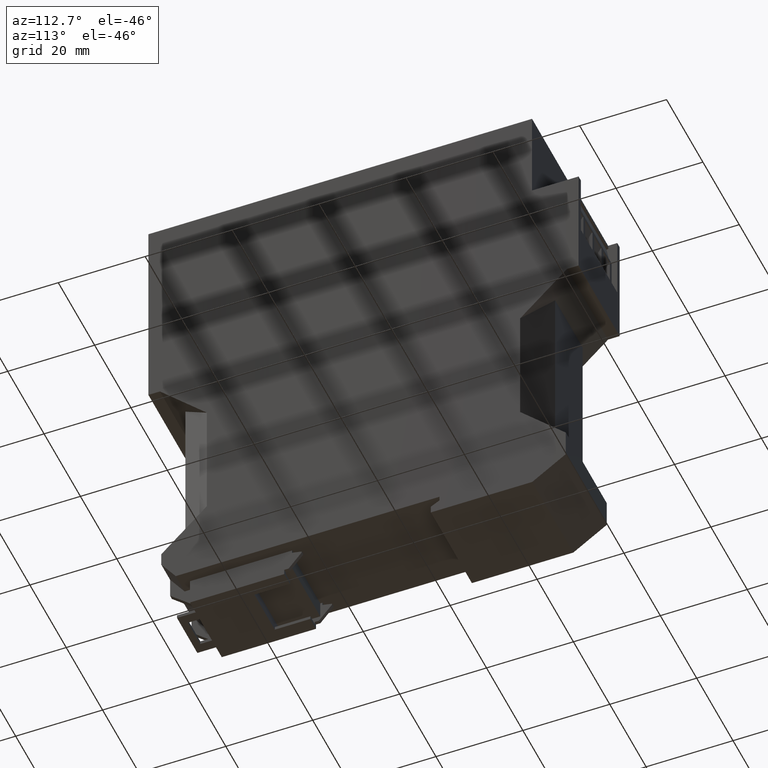
[diagram: clean part render]
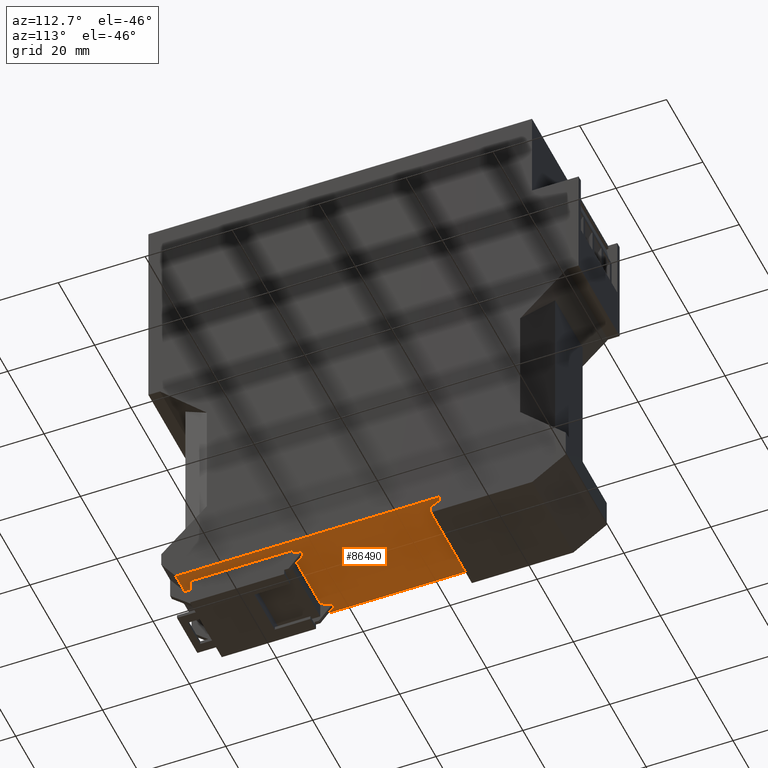
[diagram: same view with one face highlighted and labeled with its STEP entity id]
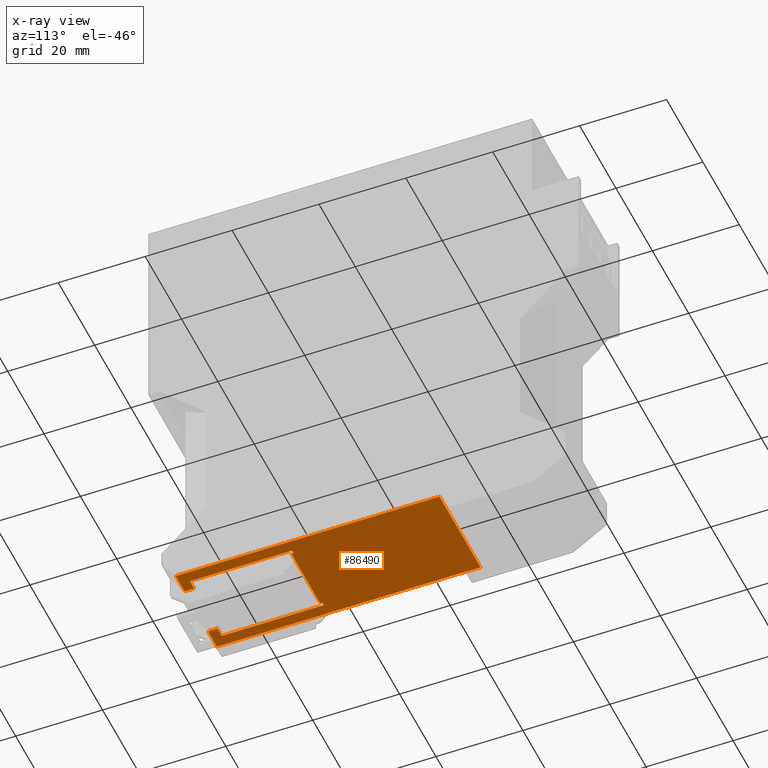
[diagram: x-ray of the same camera — body ghosted, the highlighted face saturated]
A machine part, auxiliary view. The second image highlights one B-rep face of the part: STEP entity #86490.
The next image is the same camera in x-ray: the body ghosted, the highlighted face saturated — about 0% of this face is hidden behind the body in this view.
In plain terms, the highlighted planar face has unit normal (0, 0, 1).
Its self-contained STEP definition (entity closure, byte-faithful):
#60=CARTESIAN_POINT('',(24.,-7.14095449438901E-13,0.));
#70=DIRECTION('',(1.,-1.44E-14,-0.));
#80=VECTOR('',#70,1.);
#90=LINE('',#60,#80);
#100=CARTESIAN_POINT('',(-60.7000000000028,5.04485342389671E-13,0.));
#110=VERTEX_POINT('',#100);
#120=CARTESIAN_POINT('',(-1.76925141204265E-12,-3.69482222595252E-13,0.)
);
#130=VERTEX_POINT('',#120);
#140=EDGE_CURVE('',#110,#130,#90,.T.);
#2010=CARTESIAN_POINT('',(-60.7000000000009,5.04485342389671E-13,22.6));
#2020=VERTEX_POINT('',#2010);
#3630=CARTESIAN_POINT('',(-1.76925141204265E-12,-3.69482222595252E-13,
22.6));
#3640=VERTEX_POINT('',#3630);
#3670=CARTESIAN_POINT('',(24.,-7.14095449438901E-13,22.6));
#3680=DIRECTION('',(1.,-1.44E-14,-0.));
#3690=VECTOR('',#3680,1.);
#3700=LINE('',#3670,#3690);
#3710=EDGE_CURVE('',#2020,#3640,#3700,.T.);
#5530=CARTESIAN_POINT('',(-60.7000000000028,5.04485342389671E-13,4.9));
#5540=VERTEX_POINT('',#5530);
#5570=CARTESIAN_POINT('',(-60.7000000000028,5.04485342389671E-13,0.));
#5580=DIRECTION('',(0.,0.,1.));
#5590=VECTOR('',#5580,1.);
#5600=LINE('',#5570,#5590);
#5610=EDGE_CURVE('',#110,#5540,#5600,.T.);
#6250=CARTESIAN_POINT('',(24.,-7.14095449438901E-13,4.9));
#6260=DIRECTION('',(1.,-1.44E-14,-0.));
#6270=VECTOR('',#6260,1.);
#6280=LINE('',#6250,#6270);
#6290=CARTESIAN_POINT('',(-58.5000000000017,8.59756710269721E-13,4.9));
#6300=VERTEX_POINT('',#6290);
#6310=EDGE_CURVE('',#5540,#6300,#6280,.T.);
#9330=CARTESIAN_POINT('',(-58.5000000000017,4.72510919280467E-13,0.));
#9340=DIRECTION('',(0.,0.,-1.));
#9350=VECTOR('',#9340,1.);
#9360=LINE('',#9330,#9350);
#9370=CARTESIAN_POINT('',(-58.5000000000017,4.72510919280467E-13,
2.54999999999998));
#9380=VERTEX_POINT('',#9370);
#9390=EDGE_CURVE('',#6300,#9380,#9360,.T.);
#10770=CARTESIAN_POINT('',(-35.5000000000031,8.59756710269721E-13,
3.34999999999999));
#10780=VERTEX_POINT('',#10770);
#10810=CARTESIAN_POINT('',(24.,-7.14095449438901E-13,3.34999999999999));
#10820=DIRECTION('',(-1.,1.44E-14,0.));
#10830=VECTOR('',#10820,1.);
#10840=LINE('',#10810,#10830);
#10850=CARTESIAN_POINT('',(-35.0000000000018,1.35003119794419E-13,
3.34999999999999));
#10860=VERTEX_POINT('',#10850);
#10870=EDGE_CURVE('',#10860,#10780,#10840,.T.);
#11270=CARTESIAN_POINT('',(-35.0000000000018,1.35003119794419E-13,0.));
#11280=DIRECTION('',(0.,0.,-1.));
#11290=VECTOR('',#11280,1.);
#11300=LINE('',#11270,#11290);
#11310=CARTESIAN_POINT('',(-35.0000000000018,1.35003119794419E-13,
2.54999999999998));
#11320=VERTEX_POINT('',#11310);
#11330=EDGE_CURVE('',#10860,#11320,#11300,.T.);
#11750=CARTESIAN_POINT('',(24.,-7.14095449438901E-13,2.54999999999998));
#11760=DIRECTION('',(-1.,1.44E-14,0.));
#11770=VECTOR('',#11760,1.);
#11780=LINE('',#11750,#11770);
#11790=EDGE_CURVE('',#11320,#9380,#11780,.T.);
#14100=CARTESIAN_POINT('',(-58.5000000000017,8.59756710269721E-13,17.7))
;
#14110=VERTEX_POINT('',#14100);
#14140=CARTESIAN_POINT('',(-58.5000000000017,4.72510919280467E-13,0.));
#14150=DIRECTION('',(0.,0.,-1.));
#14160=VECTOR('',#14150,1.);
#14170=LINE('',#14140,#14160);
#14180=CARTESIAN_POINT('',(-58.5000000000017,4.72510919280467E-13,20.05)
);
#14190=VERTEX_POINT('',#14180);
#14200=EDGE_CURVE('',#14190,#14110,#14170,.T.);
#14680=CARTESIAN_POINT('',(24.,-7.14095449438901E-13,20.05));
#14690=DIRECTION('',(-1.,1.44E-14,0.));
#14700=VECTOR('',#14690,1.);
#14710=LINE('',#14680,#14700);
#14720=CARTESIAN_POINT('',(-35.0000000000018,1.35003119794419E-13,20.05)
);
#14730=VERTEX_POINT('',#14720);
#14740=EDGE_CURVE('',#14730,#14190,#14710,.T.);
#15760=CARTESIAN_POINT('',(-35.0000000000018,1.35003119794419E-13,0.));
#15770=DIRECTION('',(0.,0.,-1.));
#15780=VECTOR('',#15770,1.);
#15790=LINE('',#15760,#15780);
#15800=CARTESIAN_POINT('',(-35.0000000000018,1.35003119794419E-13,19.25)
);
#15810=VERTEX_POINT('',#15800);
#15820=EDGE_CURVE('',#14730,#15810,#15790,.T.);
#85840=CARTESIAN_POINT('',(-1.76925141204265E-12,-3.69482222595252E-13,
0.));
#85850=DIRECTION('',(0.,0.,1.));
#85860=VECTOR('',#85850,1.);
#85870=LINE('',#85840,#85860);
#85880=EDGE_CURVE('',#130,#3640,#85870,.T.);
#86020=CARTESIAN_POINT('',(-17.5000000000023,-1.17239551400417E-13,11.3)
);
#86030=DIRECTION('',(1.44E-14,1.,0.));
#86040=DIRECTION('',(1.,-1.44E-14,-0.));
#86050=AXIS2_PLACEMENT_3D('',#86020,#86030,#86040);
#86060=PLANE('',#86050);
#86070=ORIENTED_EDGE('',*,*,#140,.T.);
#86080=ORIENTED_EDGE('',*,*,#5610,.F.);
#86090=ORIENTED_EDGE('',*,*,#6310,.F.);
#86100=ORIENTED_EDGE('',*,*,#9390,.F.);
#86110=ORIENTED_EDGE('',*,*,#11790,.T.);
#86120=ORIENTED_EDGE('',*,*,#11330,.T.);
#86130=ORIENTED_EDGE('',*,*,#10870,.F.);
#86140=CARTESIAN_POINT('',(-35.5000000000031,1.4210854715202E-13,0.));
#86150=DIRECTION('',(0.,0.,1.));
#86160=VECTOR('',#86150,1.);
#86170=LINE('',#86140,#86160);
#86180=CARTESIAN_POINT('',(-35.5000000000031,8.59756710269721E-13,19.25)
);
#86190=VERTEX_POINT('',#86180);
#86200=EDGE_CURVE('',#10780,#86190,#86170,.T.);
#86210=ORIENTED_EDGE('',*,*,#86200,.F.);
#86220=CARTESIAN_POINT('',(24.,-7.14095449438901E-13,19.25));
#86230=DIRECTION('',(1.,-1.44E-14,-0.));
#86240=VECTOR('',#86230,1.);
#86250=LINE('',#86220,#86240);
#86260=EDGE_CURVE('',#86190,#15810,#86250,.T.);
#86270=ORIENTED_EDGE('',*,*,#86260,.F.);
#86280=ORIENTED_EDGE('',*,*,#15820,.T.);
#86290=ORIENTED_EDGE('',*,*,#14740,.F.);
#86300=ORIENTED_EDGE('',*,*,#14200,.F.);
#86310=CARTESIAN_POINT('',(24.,-7.14095449438901E-13,17.7));
#86320=DIRECTION('',(-1.,1.44E-14,0.));
#86330=VECTOR('',#86320,1.);
#86340=LINE('',#86310,#86330);
#86350=CARTESIAN_POINT('',(-60.7000000000009,5.04485342389671E-13,17.7))
;
#86360=VERTEX_POINT('',#86350);
#86370=EDGE_CURVE('',#14110,#86360,#86340,.T.);
#86380=ORIENTED_EDGE('',*,*,#86370,.F.);
#86390=CARTESIAN_POINT('',(-60.700000000001,6.46593889541691E-13,0.));
#86400=DIRECTION('',(0.,0.,1.));
#86410=VECTOR('',#86400,1.);
#86420=LINE('',#86390,#86410);
#86430=EDGE_CURVE('',#86360,#2020,#86420,.T.);
#86440=ORIENTED_EDGE('',*,*,#86430,.F.);
#86450=ORIENTED_EDGE('',*,*,#3710,.F.);
#86460=ORIENTED_EDGE('',*,*,#85880,.T.);
#86470=EDGE_LOOP('',(#86460,#86450,#86440,#86380,#86300,#86290,#86280,
#86270,#86210,#86130,#86120,#86110,#86100,#86090,#86080,#86070));
#86480=FACE_OUTER_BOUND('',#86470,.T.);
#86490=ADVANCED_FACE('',(#86480),#86060,.F.);